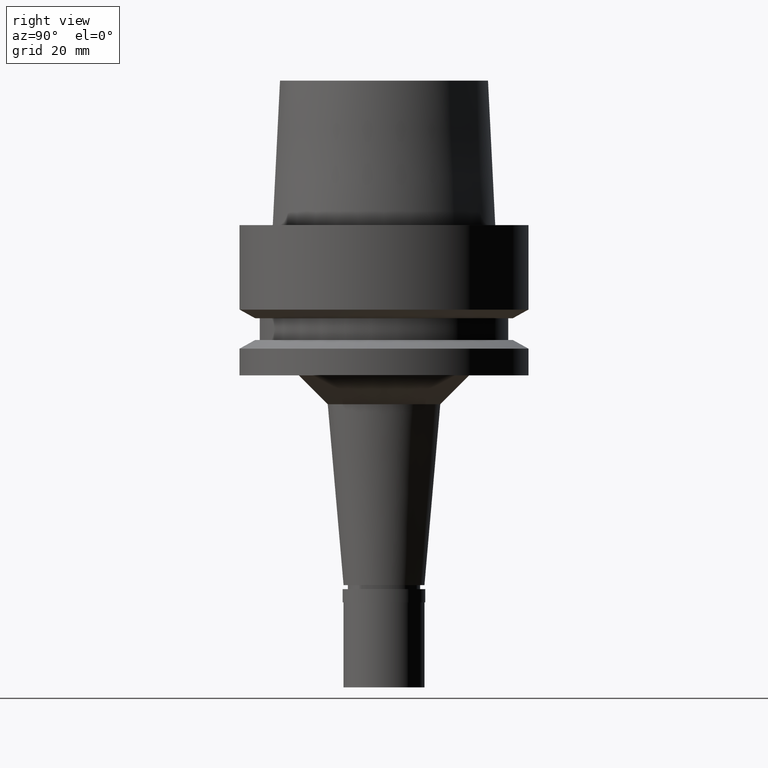
[diagram: clean part render]
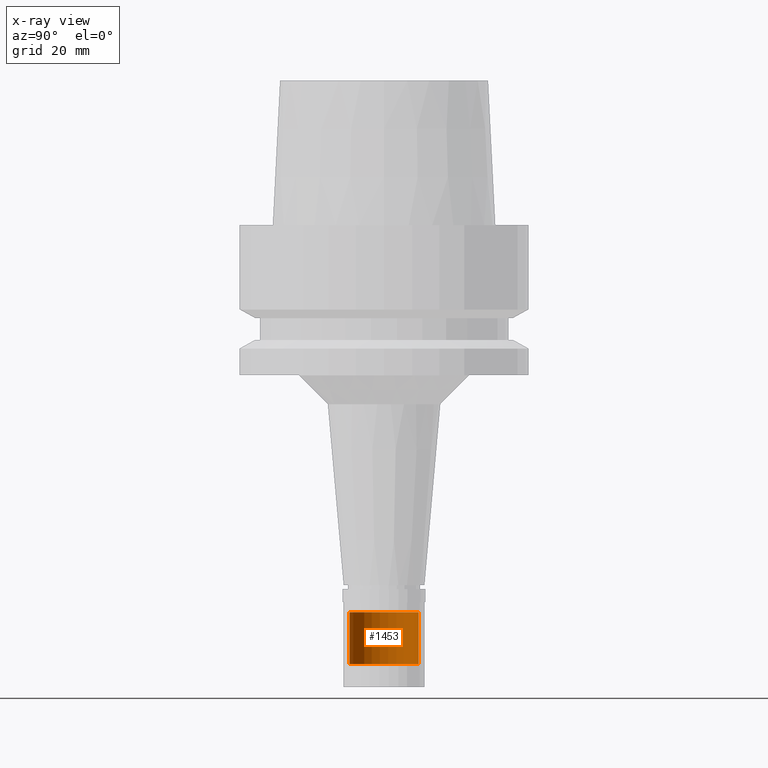
[diagram: x-ray — body ghosted, one internal face saturated and labeled with its STEP entity id]
A machine part, right view, then the same camera in x-ray: the body is ghosted and one INTERNAL B-rep face — a face not visible from any outside direction — is saturated and labeled: STEP entity #1453.
In plain terms, the highlighted cylindrical surface (edge-blend (fillet) strip) has radius 6 mm, axis along (0, 0, -1).
Its self-contained STEP definition (entity closure, byte-faithful):
#19 = DIRECTION ( 'NONE',  ( 0.0000000000000000000, 0.0000000000000000000, -1.000000000000000000 ) ) ;
#27 = CARTESIAN_POINT ( 'NONE',  ( 0.0000000000000000000, 0.0000000000000000000, -76.00000000000000000 ) ) ;
#76 = DIRECTION ( 'NONE',  ( 0.0000000000000000000, -1.000000000000000000, 0.0000000000000000000 ) ) ;
#130 = CARTESIAN_POINT ( 'NONE',  ( 0.0000000000000000000, 6.000000000000000000, -67.00000000000000000 ) ) ;
#136 = EDGE_CURVE ( 'NONE', #838, #1937, #2146, .T. ) ;
#218 = CARTESIAN_POINT ( 'NONE',  ( 0.0000000000000000000, -6.000000000000000000, -67.00000000000000000 ) ) ;
#242 = DIRECTION ( 'NONE',  ( 0.0000000000000000000, 1.000000000000000000, 0.0000000000000000000 ) ) ;
#296 = DIRECTION ( 'NONE',  ( 0.0000000000000000000, 0.0000000000000000000, -1.000000000000000000 ) ) ;
#452 = ORIENTED_EDGE ( 'NONE', *, *, #1797, .T. ) ;
#497 = AXIS2_PLACEMENT_3D ( 'NONE', #27, #2079, #242 ) ;
#534 = VERTEX_POINT ( 'NONE', #675 ) ;
#556 = DIRECTION ( 'NONE',  ( 0.0000000000000000000, 0.0000000000000000000, -1.000000000000000000 ) ) ;
#648 = EDGE_LOOP ( 'NONE', ( #452, #784, #2407, #1810 ) ) ;
#675 = CARTESIAN_POINT ( 'NONE',  ( 0.0000000000000000000, 6.000000000000000000, -76.00000000000000000 ) ) ;
#692 = FACE_OUTER_BOUND ( 'NONE', #648, .T. ) ;
#715 = AXIS2_PLACEMENT_3D ( 'NONE', #1754, #296, #76 ) ;
#767 = CIRCLE ( 'NONE', #497, 6.000000000000000000 ) ;
#784 = ORIENTED_EDGE ( 'NONE', *, *, #2393, .F. ) ;
#838 = VERTEX_POINT ( 'NONE', #2245 ) ;
#893 = CARTESIAN_POINT ( 'NONE',  ( 0.0000000000000000000, 0.0000000000000000000, -67.00000000000000000 ) ) ;
#913 = CARTESIAN_POINT ( 'NONE',  ( 0.0000000000000000000, -6.000000000000000000, -76.00000000000000000 ) ) ;
#1118 = VECTOR ( 'NONE', #19, 1000.000000000000000 ) ;
#1133 = CYLINDRICAL_SURFACE ( 'NONE', #715, 6.000000000000000000 ) ;
#1176 = EDGE_CURVE ( 'NONE', #1937, #534, #2035, .T. ) ;
#1366 = DIRECTION ( 'NONE',  ( 0.0000000000000000000, 0.0000000000000000000, -1.000000000000000000 ) ) ;
#1424 = VECTOR ( 'NONE', #556, 1000.000000000000000 ) ;
#1453 = ADVANCED_FACE ( 'NONE', ( #692 ), #1133, .T. ) ;
#1737 = DIRECTION ( 'NONE',  ( 0.0000000000000000000, -1.000000000000000000, 0.0000000000000000000 ) ) ;
#1748 = CARTESIAN_POINT ( 'NONE',  ( 0.0000000000000000000, 6.000000000000000000, -67.00000000000000000 ) ) ;
#1754 = CARTESIAN_POINT ( 'NONE',  ( 0.0000000000000000000, 0.0000000000000000000, 30.05000000000000071 ) ) ;
#1797 = EDGE_CURVE ( 'NONE', #534, #1953, #767, .T. ) ;
#1810 = ORIENTED_EDGE ( 'NONE', *, *, #1176, .T. ) ;
#1937 = VERTEX_POINT ( 'NONE', #1748 ) ;
#1953 = VERTEX_POINT ( 'NONE', #913 ) ;
#2035 = LINE ( 'NONE', #130, #1424 ) ;
#2079 = DIRECTION ( 'NONE',  ( 0.0000000000000000000, 0.0000000000000000000, 1.000000000000000000 ) ) ;
#2099 = LINE ( 'NONE', #218, #1118 ) ;
#2146 = CIRCLE ( 'NONE', #2633, 6.000000000000000000 ) ;
#2245 = CARTESIAN_POINT ( 'NONE',  ( 0.0000000000000000000, -6.000000000000000000, -67.00000000000000000 ) ) ;
#2393 = EDGE_CURVE ( 'NONE', #838, #1953, #2099, .T. ) ;
#2407 = ORIENTED_EDGE ( 'NONE', *, *, #136, .T. ) ;
#2633 = AXIS2_PLACEMENT_3D ( 'NONE', #893, #1366, #1737 ) ;